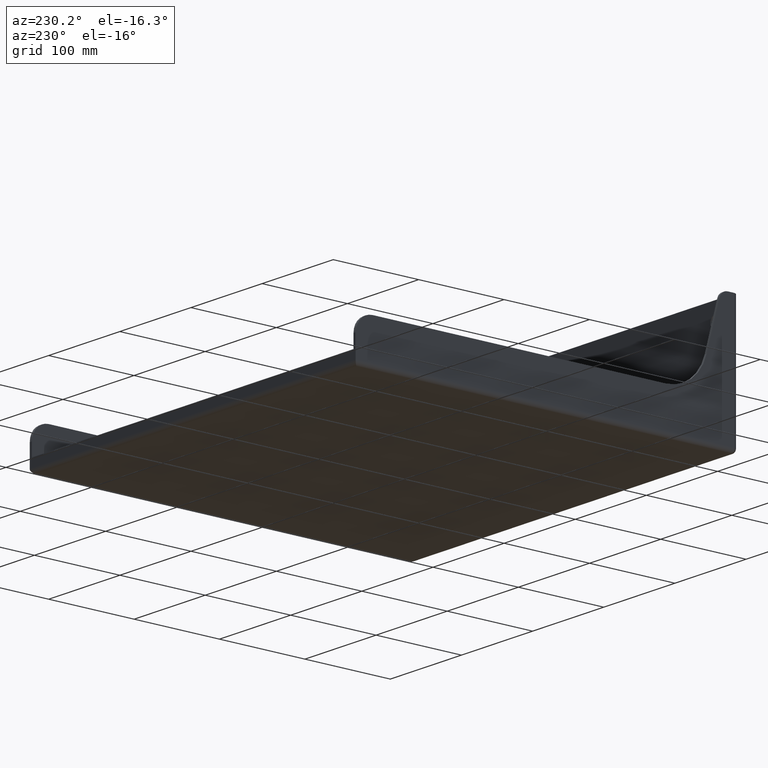
[diagram: clean part render]
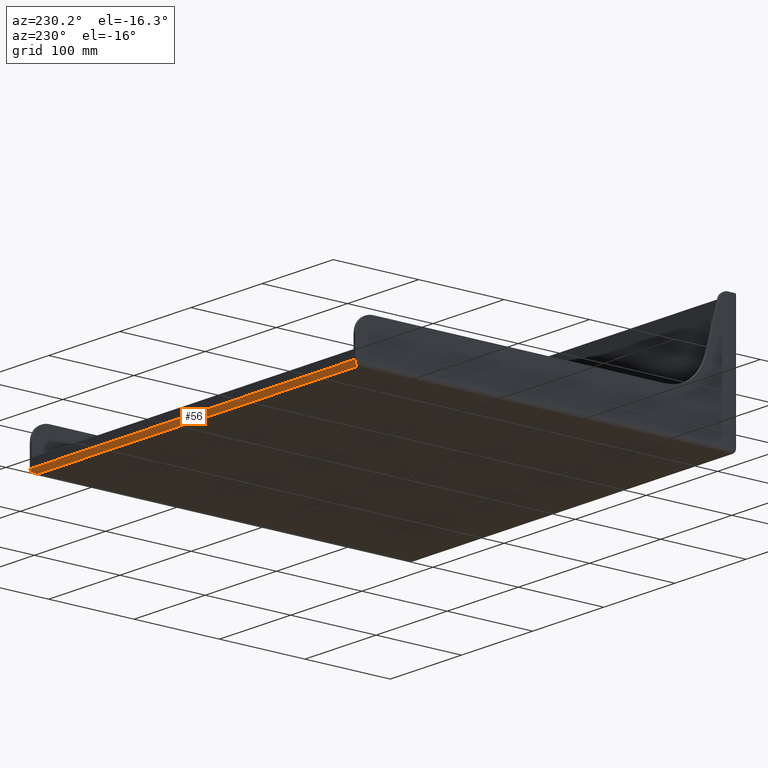
[diagram: same view with one face highlighted and labeled with its STEP entity id]
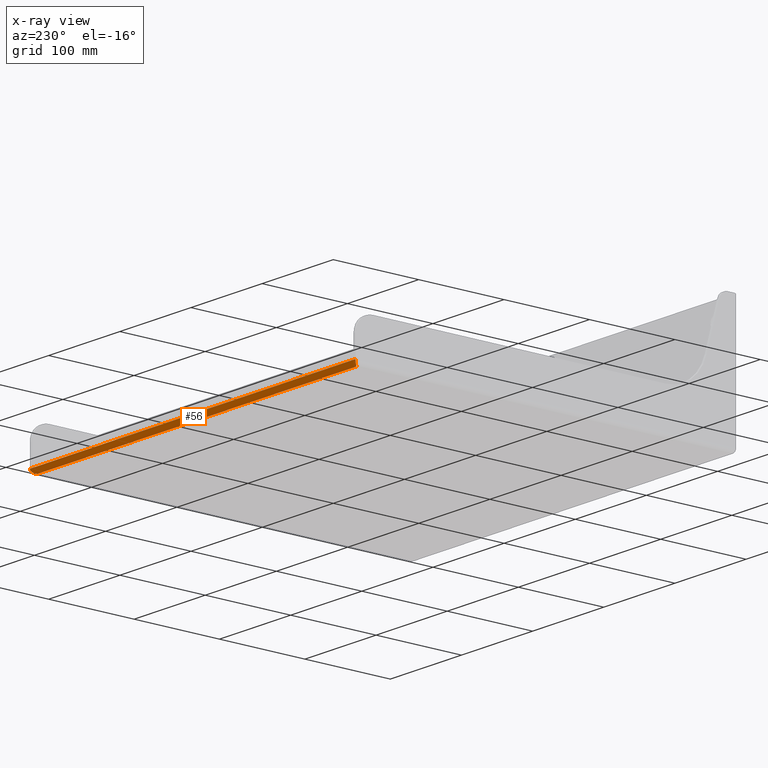
[diagram: x-ray of the same camera — body ghosted, the highlighted face saturated]
A machine part, auxiliary view. The second image highlights one B-rep face of the part: STEP entity #56.
The next image is the same camera in x-ray: the body ghosted, the highlighted face saturated — about 0% of this face is hidden behind the body in this view.
In plain terms, the highlighted cylindrical surface (edge-blend (fillet) strip) has radius 5 mm, axis along (-1, 0, 0).
Its self-contained STEP definition (entity closure, byte-faithful):
#56 = ADVANCED_FACE ( 'NONE', ( #800 ), #807, .T. ) ;
#80 = EDGE_CURVE ( 'NONE', #2141, #1837, #833, .T. ) ;
#117 = CARTESIAN_POINT ( 'NONE',  ( -224.0000000000000000, 443.0000000000000000, 0.0000000000000000000 ) ) ;
#220 = AXIS2_PLACEMENT_3D ( 'NONE', #1518, #312, #1997 ) ;
#246 = EDGE_CURVE ( 'NONE', #1842, #1834, #847, .T. ) ;
#285 = EDGE_CURVE ( 'NONE', #1842, #1837, #1812, .T. ) ;
#286 = EDGE_CURVE ( 'NONE', #2141, #1834, #1807, .T. ) ;
#312 = DIRECTION ( 'NONE',  ( -1.000000000000000000, 0.0000000000000000000, 0.0000000000000000000 ) ) ;
#381 = CARTESIAN_POINT ( 'NONE',  ( -229.0000000000000000, 448.0000000000000000, 5.000000000000000900 ) ) ;
#384 = CARTESIAN_POINT ( 'NONE',  ( 224.0000000000000000, 443.0000000000000000, 0.0000000000000000000 ) ) ;
#389 = CARTESIAN_POINT ( 'NONE',  ( 229.0000000000000000, 448.0000000000000000, 5.000000000000000900 ) ) ;
#800 = FACE_OUTER_BOUND ( 'NONE', #1634, .T. ) ;
#807 = CYLINDRICAL_SURFACE ( 'NONE', #220, 5.000000000000000000 ) ;
#833 = LINE ( 'NONE', #1313, #844 ) ;
#844 = VECTOR ( 'NONE', #1323, 1000.000000000000000 ) ;
#847 = LINE ( 'NONE', #1321, #852 ) ;
#852 = VECTOR ( 'NONE', #1331, 1000.000000000000000 ) ;
#1206 = CARTESIAN_POINT ( 'NONE',  ( 228.9999999999999400, 447.9999999999998900, 2.071067811865474600 ) ) ;
#1213 = CARTESIAN_POINT ( 'NONE',  ( 226.9289321881345200, 445.9289321881346400, -1.196687361609017100E-015 ) ) ;
#1214 = CARTESIAN_POINT ( 'NONE',  ( -228.9999999999999400, 447.9999999999998900, 2.071067811865474600 ) ) ;
#1218 = CARTESIAN_POINT ( 'NONE',  ( 229.0000000000000000, 448.0000000000000000, 5.000000000000000900 ) ) ;
#1219 = CARTESIAN_POINT ( 'NONE',  ( 224.0000000000000000, 443.0000000000000000, 0.0000000000000000000 ) ) ;
#1220 = CARTESIAN_POINT ( 'NONE',  ( -226.9289321881345200, 445.9289321881346400, -5.380361143677896800E-016 ) ) ;
#1221 = CARTESIAN_POINT ( 'NONE',  ( -224.0000000000000000, 443.0000000000000000, 0.0000000000000000000 ) ) ;
#1222 = CARTESIAN_POINT ( 'NONE',  ( -229.0000000000000000, 448.0000000000000000, 5.000000000000000900 ) ) ;
#1265 = ORIENTED_EDGE ( 'NONE', *, *, #246, .F. ) ;
#1266 = ORIENTED_EDGE ( 'NONE', *, *, #286, .T. ) ;
#1313 = CARTESIAN_POINT ( 'NONE',  ( 229.0000000000000000, 443.0000000000000000, 0.0000000000000000000 ) ) ;
#1321 = CARTESIAN_POINT ( 'NONE',  ( 229.0000000000000000, 448.0000000000000000, 4.999999999999998200 ) ) ;
#1323 = DIRECTION ( 'NONE',  ( 1.000000000000000000, -0.0000000000000000000, -0.0000000000000000000 ) ) ;
#1331 = DIRECTION ( 'NONE',  ( -1.000000000000000000, 0.0000000000000000000, 0.0000000000000000000 ) ) ;
#1518 = CARTESIAN_POINT ( 'NONE',  ( 229.0000000000000000, 443.0000000000000000, 4.999999999999998200 ) ) ;
#1634 = EDGE_LOOP ( 'NONE', ( #2000, #1999, #1266, #1265 ) ) ;
#1807 =( BOUNDED_CURVE ( )  B_SPLINE_CURVE ( 3, ( #1221, #1220, #1214, #1222 ),
 .UNSPECIFIED., .F., .F. ) 
 B_SPLINE_CURVE_WITH_KNOTS ( ( 4, 4 ),
 ( 4.712388980384689700, 6.283185307179586200 ),
 .UNSPECIFIED. ) 
 CURVE ( )  GEOMETRIC_REPRESENTATION_ITEM ( )  RATIONAL_B_SPLINE_CURVE ( ( 1.000000000000000000, 0.8047378541243649400, 0.8047378541243649400, 1.000000000000000000 ) ) 
 REPRESENTATION_ITEM ( '' )  );
#1812 =( BOUNDED_CURVE ( )  B_SPLINE_CURVE ( 3, ( #1218, #1206, #1213, #1219 ),
 .UNSPECIFIED., .F., .T. ) 
 B_SPLINE_CURVE_WITH_KNOTS ( ( 4, 4 ),
 ( 3.141592653589792700, 4.712388980384689700 ),
 .UNSPECIFIED. ) 
 CURVE ( )  GEOMETRIC_REPRESENTATION_ITEM ( )  RATIONAL_B_SPLINE_CURVE ( ( 1.000000000000000000, 0.8047378541243649400, 0.8047378541243649400, 1.000000000000000000 ) ) 
 REPRESENTATION_ITEM ( '' )  );
#1834 = VERTEX_POINT ( 'NONE', #381 ) ;
#1837 = VERTEX_POINT ( 'NONE', #384 ) ;
#1842 = VERTEX_POINT ( 'NONE', #389 ) ;
#1997 = DIRECTION ( 'NONE',  ( 0.0000000000000000000, 0.0000000000000000000, 1.000000000000000000 ) ) ;
#1999 = ORIENTED_EDGE ( 'NONE', *, *, #80, .F. ) ;
#2000 = ORIENTED_EDGE ( 'NONE', *, *, #285, .T. ) ;
#2141 = VERTEX_POINT ( 'NONE', #117 ) ;